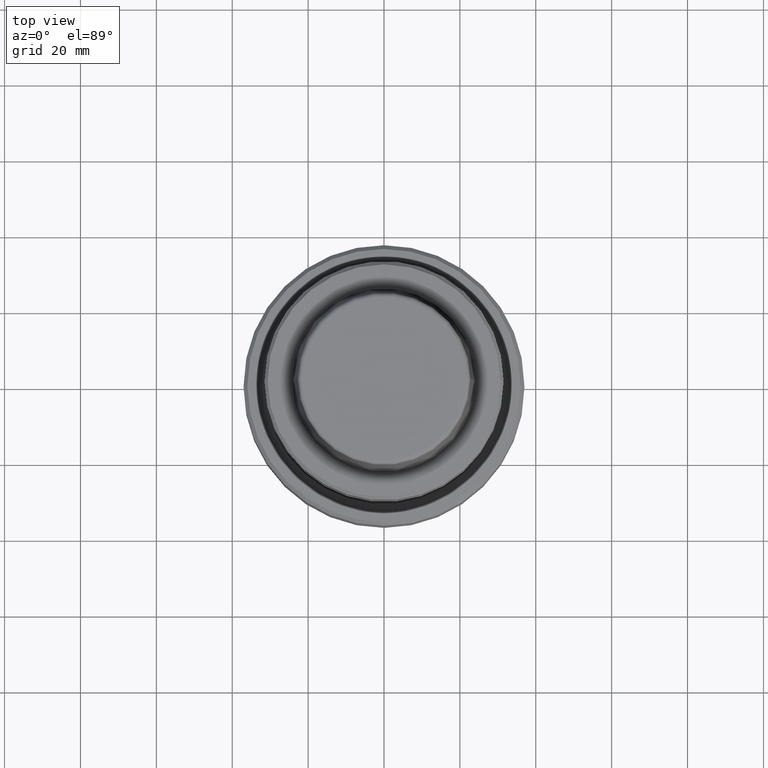
[diagram: clean part render]
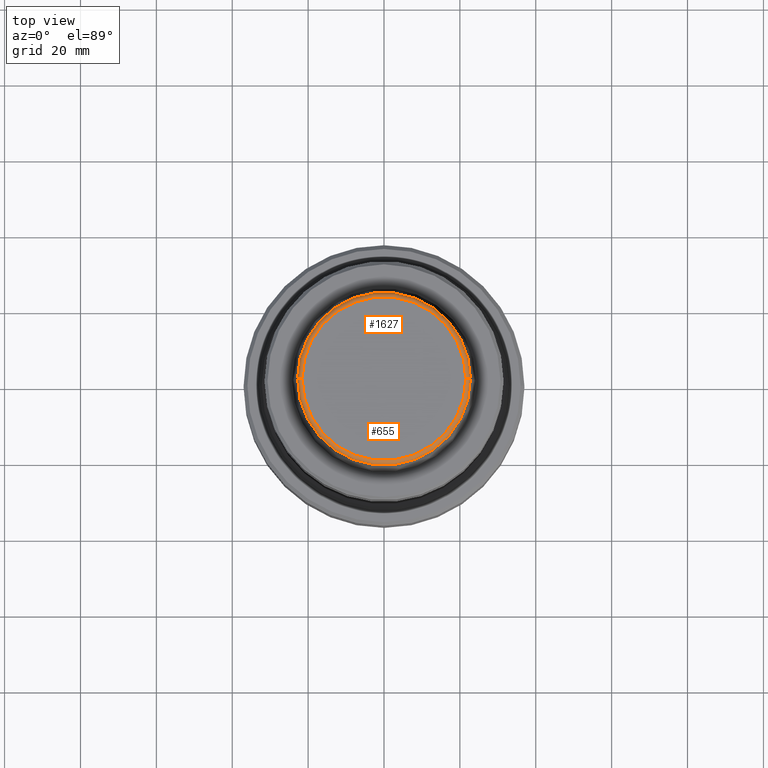
[diagram: same view with one multi-face feature highlighted, each face labeled with its STEP entity id]
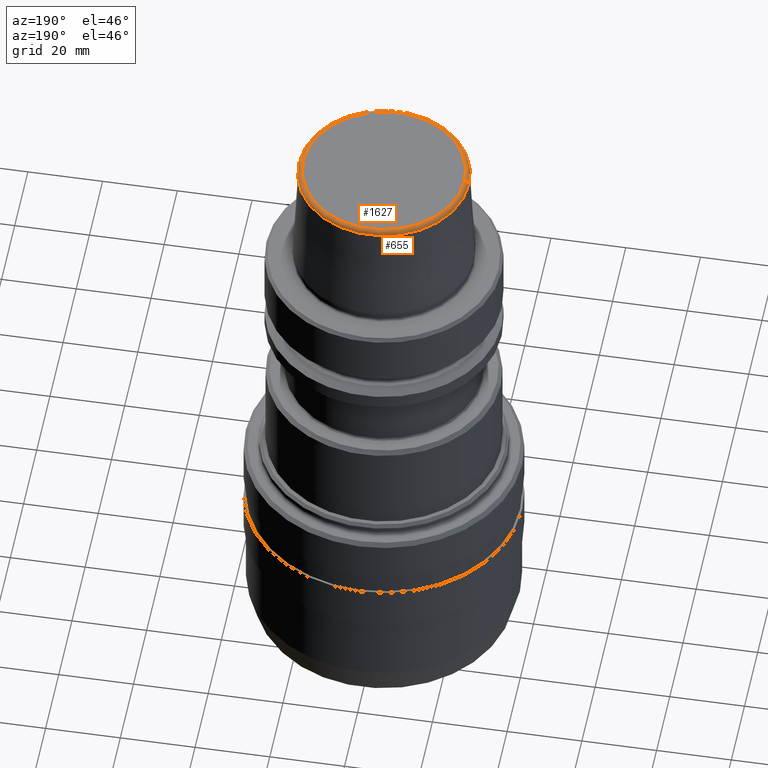
[diagram: same view with one multi-face feature highlighted, each face labeled with its STEP entity id]
A machine part, top view. The highlighted faces form ONE feature: a constant-radius fillet chain: 2 tangent blend faces with common blend radius 1.2 mm. The faces share edges in the B-rep.
A second angle (auxiliary view) of the same feature is appended — it is thin or edge-on in the first view.
Their STEP definitions:
[1] entity #655 (Torus):
#13 = VERTEX_POINT ( 'NONE', #1970 ) ;
#45 = TOROIDAL_SURFACE ( 'NONE', #1452, 21.58105086660056000, 1.199999999999964900 ) ;
#64 = AXIS2_PLACEMENT_3D ( 'NONE', #1711, #579, #128 ) ;
#128 = DIRECTION ( 'NONE',  ( 0.0000000000000000000, 0.0000000000000000000, -1.000000000000000000 ) ) ;
#149 = CIRCLE ( 'NONE', #434, 22.77954767978207700 ) ;
#216 = AXIS2_PLACEMENT_3D ( 'NONE', #419, #1085, #1850 ) ;
#239 = CARTESIAN_POINT ( 'NONE',  ( 0.0000000000000000000, 0.0000000000000000000, 30.76004488982375700 ) ) ;
#316 = EDGE_CURVE ( 'NONE', #13, #503, #149, .T. ) ;
#370 = DIRECTION ( 'NONE',  ( 1.000000000000000000, 0.0000000000000000000, 0.0000000000000000000 ) ) ;
#387 = DIRECTION ( 'NONE',  ( -0.0000000000000000000, -0.0000000000000000000, 1.000000000000000000 ) ) ;
#393 = DIRECTION ( 'NONE',  ( -1.000000000000000000, 1.224646799147353500E-016, 0.0000000000000000000 ) ) ;
#419 = CARTESIAN_POINT ( 'NONE',  ( 0.0000000000000000000, 0.0000000000000000000, 31.90000000000026100 ) ) ;
#434 = AXIS2_PLACEMENT_3D ( 'NONE', #239, #387, #1620 ) ;
#503 = VERTEX_POINT ( 'NONE', #863 ) ;
#579 = DIRECTION ( 'NONE',  ( 0.0000000000000000000, -1.000000000000000000, 0.0000000000000000000 ) ) ;
#586 = CARTESIAN_POINT ( 'NONE',  ( -21.58105086660056000, 2.642916486601858800E-015, 30.70000000000039400 ) ) ;
#607 = CIRCLE ( 'NONE', #64, 1.199999999999965100 ) ;
#655 = ADVANCED_FACE ( 'NONE', ( #1665 ), #45, .T. ) ;
#863 = CARTESIAN_POINT ( 'NONE',  ( 22.77954767978207700, 2.876381753844057800E-015, 30.76004488982375700 ) ) ;
#996 = ORIENTED_EDGE ( 'NONE', *, *, #1709, .T. ) ;
#1061 = CARTESIAN_POINT ( 'NONE',  ( 21.58105086660056000, 0.0000000000000000000, 31.90000000000026100 ) ) ;
#1085 = DIRECTION ( 'NONE',  ( -0.0000000000000000000, -0.0000000000000000000, 1.000000000000000000 ) ) ;
#1131 = EDGE_LOOP ( 'NONE', ( #1290, #1924, #996, #1801 ) ) ;
#1205 = CARTESIAN_POINT ( 'NONE',  ( -21.58105086660056000, 2.716303250904405500E-015, 31.90000000000026100 ) ) ;
#1290 = ORIENTED_EDGE ( 'NONE', *, *, #1821, .F. ) ;
#1326 = CARTESIAN_POINT ( 'NONE',  ( 0.0000000000000000000, 0.0000000000000000000, 30.70000000000039400 ) ) ;
#1350 = AXIS2_PLACEMENT_3D ( 'NONE', #586, #2068, #393 ) ;
#1452 = AXIS2_PLACEMENT_3D ( 'NONE', #1326, #1629, #370 ) ;
#1529 = EDGE_CURVE ( 'NONE', #1887, #1807, #1765, .T. ) ;
#1620 = DIRECTION ( 'NONE',  ( 1.000000000000000000, 0.0000000000000000000, 0.0000000000000000000 ) ) ;
#1629 = DIRECTION ( 'NONE',  ( -0.0000000000000000000, -0.0000000000000000000, 1.000000000000000000 ) ) ;
#1650 = CIRCLE ( 'NONE', #1350, 1.199999999999965100 ) ;
#1665 = FACE_OUTER_BOUND ( 'NONE', #1131, .T. ) ;
#1709 = EDGE_CURVE ( 'NONE', #503, #1807, #607, .T. ) ;
#1711 = CARTESIAN_POINT ( 'NONE',  ( 21.58105086660056000, 0.0000000000000000000, 30.70000000000039400 ) ) ;
#1765 = CIRCLE ( 'NONE', #216, 21.58105086660056000 ) ;
#1801 = ORIENTED_EDGE ( 'NONE', *, *, #1529, .F. ) ;
#1807 = VERTEX_POINT ( 'NONE', #1061 ) ;
#1821 = EDGE_CURVE ( 'NONE', #13, #1887, #1650, .T. ) ;
#1850 = DIRECTION ( 'NONE',  ( 1.000000000000000000, 0.0000000000000000000, 0.0000000000000000000 ) ) ;
#1887 = VERTEX_POINT ( 'NONE', #1205 ) ;
#1924 = ORIENTED_EDGE ( 'NONE', *, *, #316, .T. ) ;
#1970 = CARTESIAN_POINT ( 'NONE',  ( -22.77954767978207700, 0.0000000000000000000, 30.76004488982375700 ) ) ;
#2068 = DIRECTION ( 'NONE',  ( 1.224646799147353200E-016, 1.000000000000000000, 0.0000000000000000000 ) ) ;
[2] entity #1627 (Torus):
#13 = VERTEX_POINT ( 'NONE', #1970 ) ;
#64 = AXIS2_PLACEMENT_3D ( 'NONE', #1711, #579, #128 ) ;
#88 = CARTESIAN_POINT ( 'NONE',  ( 0.0000000000000000000, 0.0000000000000000000, 31.90000000000026100 ) ) ;
#128 = DIRECTION ( 'NONE',  ( 0.0000000000000000000, 0.0000000000000000000, -1.000000000000000000 ) ) ;
#169 = DIRECTION ( 'NONE',  ( -0.0000000000000000000, -0.0000000000000000000, 1.000000000000000000 ) ) ;
#220 = CARTESIAN_POINT ( 'NONE',  ( 0.0000000000000000000, 0.0000000000000000000, 30.70000000000039400 ) ) ;
#393 = DIRECTION ( 'NONE',  ( -1.000000000000000000, 1.224646799147353500E-016, 0.0000000000000000000 ) ) ;
#481 = CARTESIAN_POINT ( 'NONE',  ( 0.0000000000000000000, 0.0000000000000000000, 30.76004488982375700 ) ) ;
#503 = VERTEX_POINT ( 'NONE', #863 ) ;
#564 = ORIENTED_EDGE ( 'NONE', *, *, #1709, .F. ) ;
#579 = DIRECTION ( 'NONE',  ( 0.0000000000000000000, -1.000000000000000000, 0.0000000000000000000 ) ) ;
#586 = CARTESIAN_POINT ( 'NONE',  ( -21.58105086660056000, 2.642916486601858800E-015, 30.70000000000039400 ) ) ;
#607 = CIRCLE ( 'NONE', #64, 1.199999999999965100 ) ;
#761 = FACE_OUTER_BOUND ( 'NONE', #1075, .T. ) ;
#784 = AXIS2_PLACEMENT_3D ( 'NONE', #481, #937, #1578 ) ;
#863 = CARTESIAN_POINT ( 'NONE',  ( 22.77954767978207700, 2.876381753844057800E-015, 30.76004488982375700 ) ) ;
#921 = DIRECTION ( 'NONE',  ( 1.000000000000000000, 0.0000000000000000000, 0.0000000000000000000 ) ) ;
#937 = DIRECTION ( 'NONE',  ( -0.0000000000000000000, -0.0000000000000000000, 1.000000000000000000 ) ) ;
#1061 = CARTESIAN_POINT ( 'NONE',  ( 21.58105086660056000, 0.0000000000000000000, 31.90000000000026100 ) ) ;
#1075 = EDGE_LOOP ( 'NONE', ( #1901, #1140, #1838, #564 ) ) ;
#1080 = CIRCLE ( 'NONE', #1615, 21.58105086660056000 ) ;
#1140 = ORIENTED_EDGE ( 'NONE', *, *, #1821, .T. ) ;
#1205 = CARTESIAN_POINT ( 'NONE',  ( -21.58105086660056000, 2.716303250904405500E-015, 31.90000000000026100 ) ) ;
#1281 = AXIS2_PLACEMENT_3D ( 'NONE', #220, #1965, #1522 ) ;
#1350 = AXIS2_PLACEMENT_3D ( 'NONE', #586, #2068, #393 ) ;
#1412 = EDGE_CURVE ( 'NONE', #503, #13, #1552, .T. ) ;
#1522 = DIRECTION ( 'NONE',  ( 1.000000000000000000, 0.0000000000000000000, 0.0000000000000000000 ) ) ;
#1552 = CIRCLE ( 'NONE', #784, 22.77954767978207700 ) ;
#1578 = DIRECTION ( 'NONE',  ( 1.000000000000000000, 0.0000000000000000000, 0.0000000000000000000 ) ) ;
#1615 = AXIS2_PLACEMENT_3D ( 'NONE', #88, #169, #921 ) ;
#1627 = ADVANCED_FACE ( 'NONE', ( #761 ), #2057, .T. ) ;
#1650 = CIRCLE ( 'NONE', #1350, 1.199999999999965100 ) ;
#1673 = EDGE_CURVE ( 'NONE', #1807, #1887, #1080, .T. ) ;
#1709 = EDGE_CURVE ( 'NONE', #503, #1807, #607, .T. ) ;
#1711 = CARTESIAN_POINT ( 'NONE',  ( 21.58105086660056000, 0.0000000000000000000, 30.70000000000039400 ) ) ;
#1807 = VERTEX_POINT ( 'NONE', #1061 ) ;
#1821 = EDGE_CURVE ( 'NONE', #13, #1887, #1650, .T. ) ;
#1838 = ORIENTED_EDGE ( 'NONE', *, *, #1673, .F. ) ;
#1887 = VERTEX_POINT ( 'NONE', #1205 ) ;
#1901 = ORIENTED_EDGE ( 'NONE', *, *, #1412, .T. ) ;
#1965 = DIRECTION ( 'NONE',  ( -0.0000000000000000000, -0.0000000000000000000, 1.000000000000000000 ) ) ;
#1970 = CARTESIAN_POINT ( 'NONE',  ( -22.77954767978207700, 0.0000000000000000000, 30.76004488982375700 ) ) ;
#2057 = TOROIDAL_SURFACE ( 'NONE', #1281, 21.58105086660056000, 1.199999999999964900 ) ;
#2068 = DIRECTION ( 'NONE',  ( 1.224646799147353200E-016, 1.000000000000000000, 0.0000000000000000000 ) ) ;